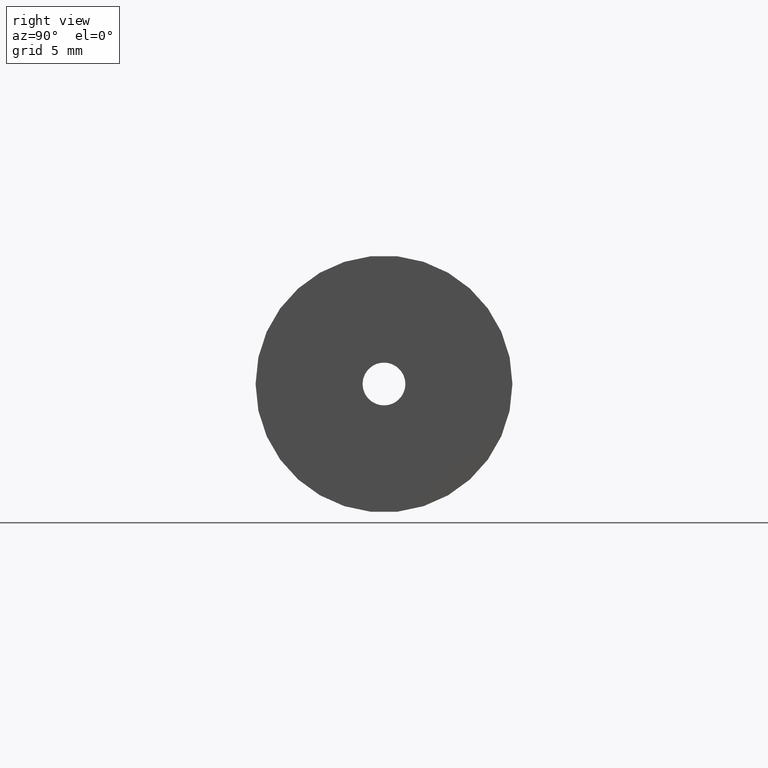
[diagram: clean part render]
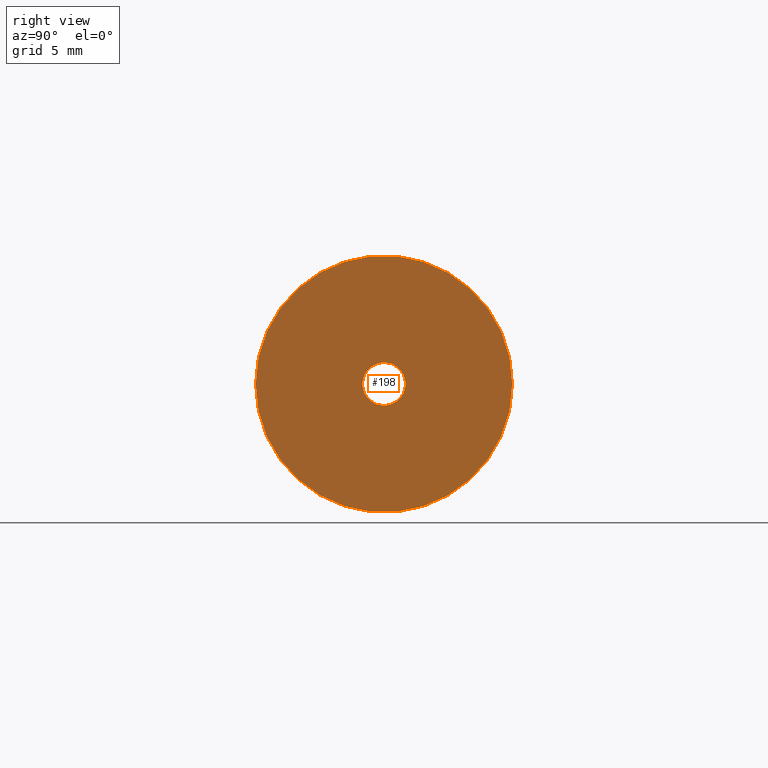
[diagram: same view with one face highlighted and labeled with its STEP entity id]
A machine part, right view. The second image highlights one B-rep face of the part: STEP entity #198.
In plain terms, the highlighted planar face has unit normal (1, 0, 0).
Its self-contained STEP definition (entity closure, byte-faithful):
#16=FACE_BOUND('',#54,.T.);
#20=PLANE('',#246);
#38=FACE_OUTER_BOUND('',#53,.T.);
#53=EDGE_LOOP('',(#168));
#54=EDGE_LOOP('',(#169));
#92=CIRCLE('',#245,9.50000000000001);
#93=CIRCLE('',#247,1.58750000000001);
#107=VERTEX_POINT('',#361);
#108=VERTEX_POINT('',#365);
#128=EDGE_CURVE('',#107,#107,#92,.T.);
#130=EDGE_CURVE('',#108,#108,#93,.T.);
#168=ORIENTED_EDGE('',*,*,#128,.T.);
#169=ORIENTED_EDGE('',*,*,#130,.F.);
#198=ADVANCED_FACE('',(#38,#16),#20,.T.);
#245=AXIS2_PLACEMENT_3D('',#362,#300,#301);
#246=AXIS2_PLACEMENT_3D('',#364,#303,#304);
#247=AXIS2_PLACEMENT_3D('',#366,#305,#306);
#300=DIRECTION('center_axis',(1.,0.,0.));
#301=DIRECTION('ref_axis',(0.,0.,-1.));
#303=DIRECTION('center_axis',(1.,0.,0.));
#304=DIRECTION('ref_axis',(0.,0.,-1.));
#305=DIRECTION('center_axis',(1.,0.,0.));
#306=DIRECTION('ref_axis',(0.,0.,-1.));
#361=CARTESIAN_POINT('',(0.,-9.50000000000001,-1.16341445918999E-15));
#362=CARTESIAN_POINT('Origin',(0.,0.,0.));
#364=CARTESIAN_POINT('Origin',(4.44089209850063E-15,1.58750000000001,0.));
#365=CARTESIAN_POINT('',(4.44089209850063E-15,-1.5875,-1.94412679364643E-16));
#366=CARTESIAN_POINT('Origin',(4.44089209850063E-15,0.,0.));